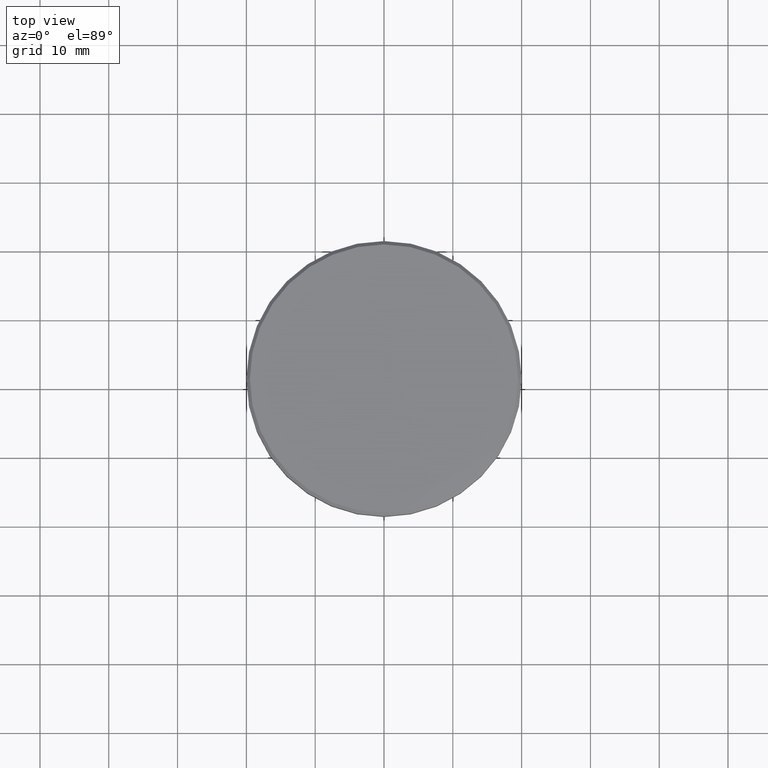
[diagram: clean part render]
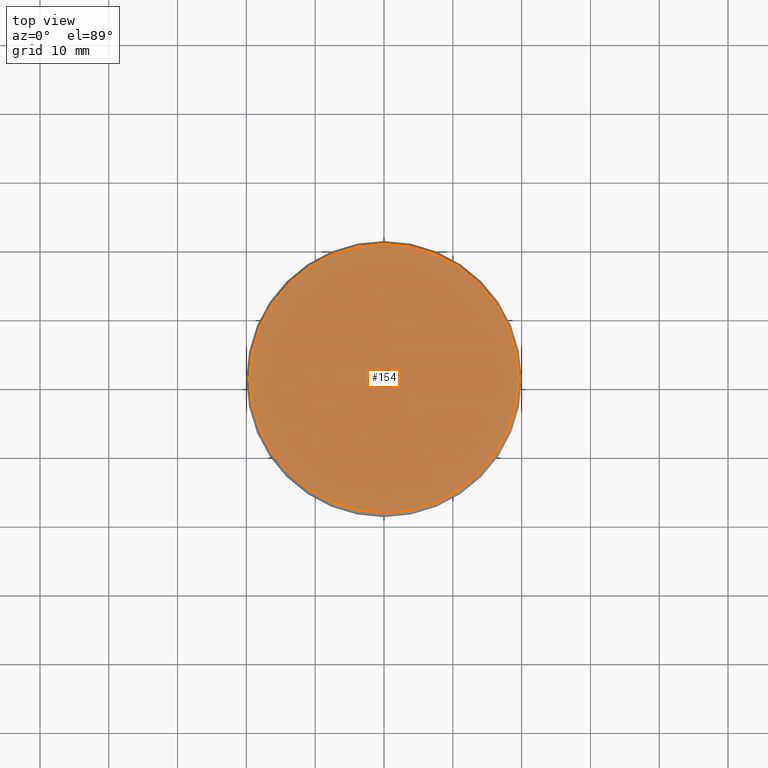
[diagram: same view with one face highlighted and labeled with its STEP entity id]
A machine part, top view. The second image highlights one B-rep face of the part: STEP entity #154.
In plain terms, the highlighted planar face has unit normal (0, -0, 1).
Its self-contained STEP definition (entity closure, byte-faithful):
#39 = EDGE_CURVE ( 'NONE', #321, #276, #727, .T. ) ;
#44 = AXIS2_PLACEMENT_3D ( 'NONE', #824, #123, #322 ) ;
#69 = AXIS2_PLACEMENT_3D ( 'NONE', #1143, #512, #585 ) ;
#123 = DIRECTION ( 'NONE',  ( 0.000000000000000000, -0.000000000000000000, 1.000000000000000000 ) ) ;
#139 = ORIENTED_EDGE ( 'NONE', *, *, #39, .T. ) ;
#154 = ADVANCED_FACE ( 'NONE', ( #912 ), #468, .T. ) ;
#162 = AXIS2_PLACEMENT_3D ( 'NONE', #758, #857, #602 ) ;
#220 = CARTESIAN_POINT ( 'NONE',  ( 19.50000000000001776, 2.418677428316023515E-15, 0.000000000000000000 ) ) ;
#276 = VERTEX_POINT ( 'NONE', #220 ) ;
#321 = VERTEX_POINT ( 'NONE', #1105 ) ;
#322 = DIRECTION ( 'NONE',  ( 1.000000000000000000, 0.000000000000000000, 0.000000000000000000 ) ) ;
#468 = PLANE ( 'NONE',  #44 ) ;
#496 = CIRCLE ( 'NONE', #69, 19.50000000000001776 ) ;
#512 = DIRECTION ( 'NONE',  ( -0.000000000000000000, -0.000000000000000000, 1.000000000000000000 ) ) ;
#585 = DIRECTION ( 'NONE',  ( 1.000000000000000000, 0.000000000000000000, 0.000000000000000000 ) ) ;
#602 = DIRECTION ( 'NONE',  ( 1.000000000000000000, 0.000000000000000000, 0.000000000000000000 ) ) ;
#727 = CIRCLE ( 'NONE', #162, 19.50000000000001776 ) ;
#758 = CARTESIAN_POINT ( 'NONE',  ( 0.000000000000000000, 0.000000000000000000, 0.000000000000000000 ) ) ;
#824 = CARTESIAN_POINT ( 'NONE',  ( 0.000000000000000000, 0.000000000000000000, 0.000000000000000000 ) ) ;
#830 = ORIENTED_EDGE ( 'NONE', *, *, #886, .T. ) ;
#857 = DIRECTION ( 'NONE',  ( -0.000000000000000000, -0.000000000000000000, 1.000000000000000000 ) ) ;
#886 = EDGE_CURVE ( 'NONE', #276, #321, #496, .T. ) ;
#887 = EDGE_LOOP ( 'NONE', ( #139, #830 ) ) ;
#912 = FACE_OUTER_BOUND ( 'NONE', #887, .T. ) ;
#1105 = CARTESIAN_POINT ( 'NONE',  ( -19.50000000000001776, 0.000000000000000000, 0.000000000000000000 ) ) ;
#1143 = CARTESIAN_POINT ( 'NONE',  ( 0.000000000000000000, 0.000000000000000000, 0.000000000000000000 ) ) ;